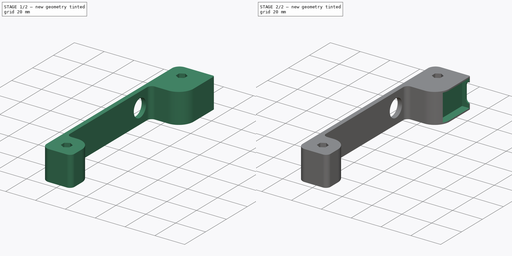
[diagram: build sequence overview — one tinted view per stage of 2, left to right]
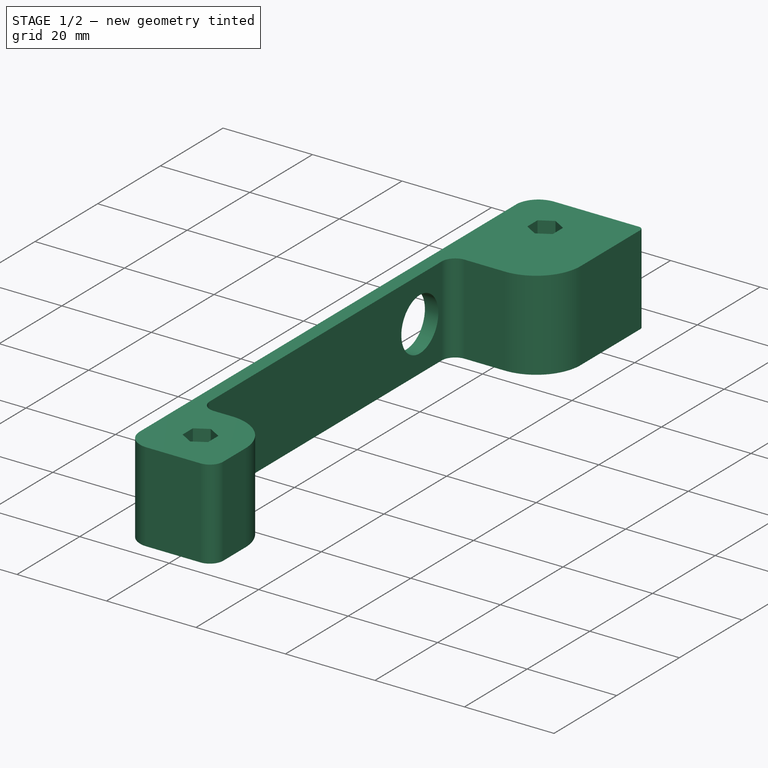
[diagram: stage 1 of 2 — iso view after this stage's code; geometry added in this stage tinted green]
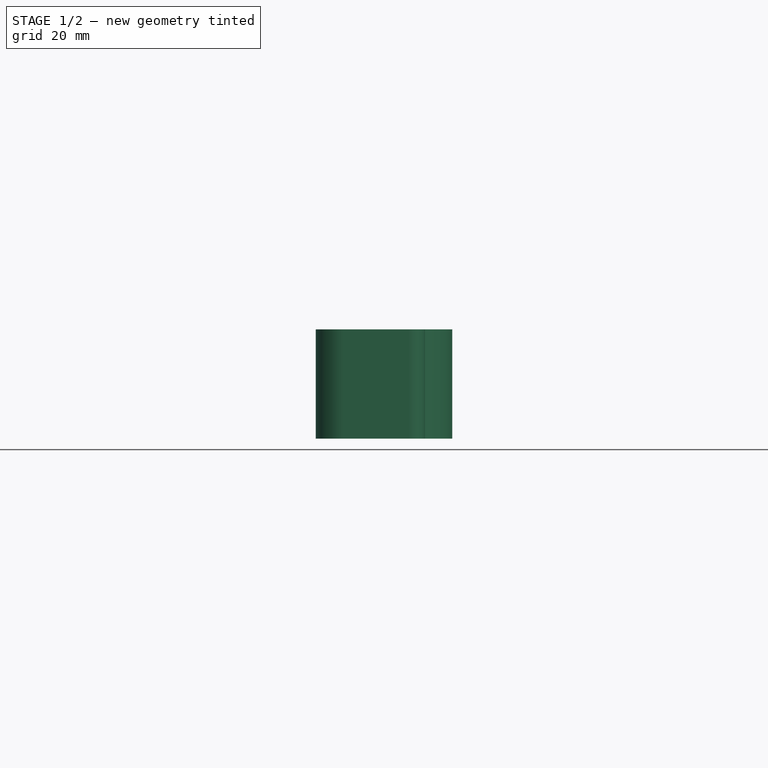
[diagram: stage 1 of 2 — front view after this stage's code; geometry added in this stage tinted green]
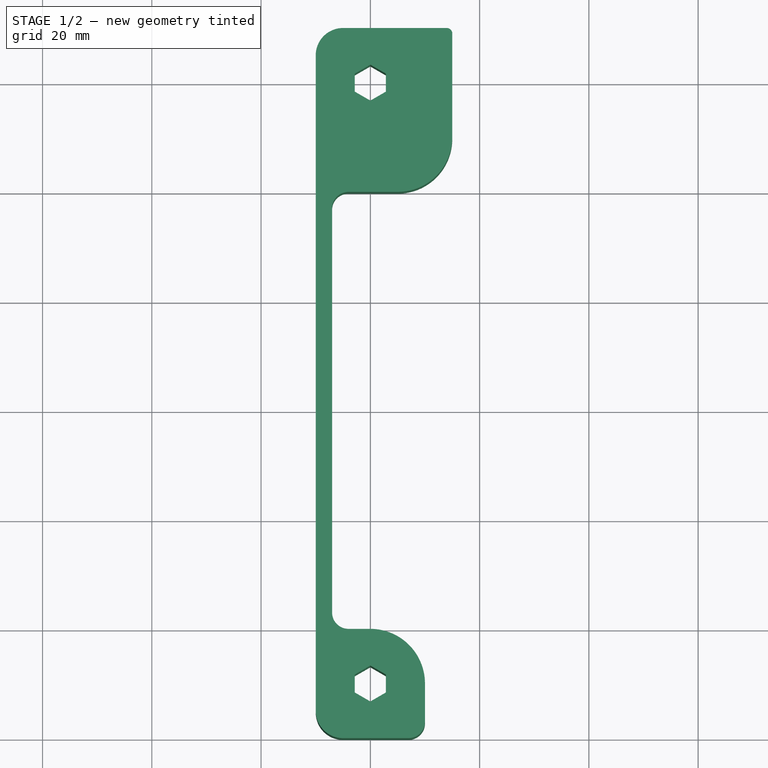
[diagram: stage 1 of 2 — top view after this stage's code; geometry added in this stage tinted green]
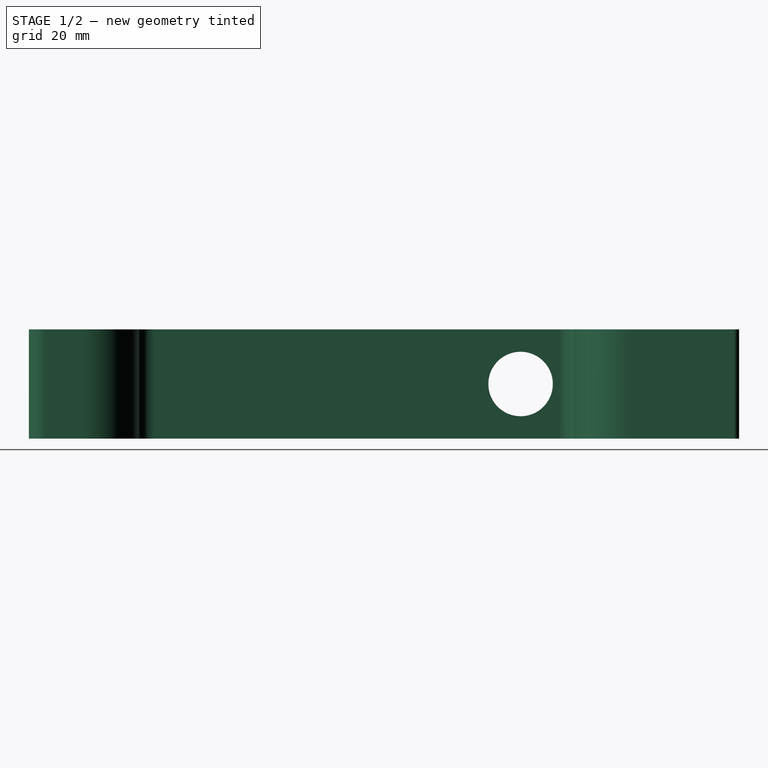
[diagram: stage 1 of 2 — right view after this stage's code; geometry added in this stage tinted green]
FCSTD DOCUMENT  (FreeCAD 1.0R39109 (Git))
Label: SidePanelFS
License: All rights reserved
LicenseURL: https://en.wikipedia.org/wiki/All_rights_reserved
objects: Sketcher::SketchObject×4, PartDesign::Plane×3, PartDesign::Pocket×3, PartDesign::Pad×1, Part::Compound×1, TechDraw::DrawSVGTemplate×1, TechDraw::DrawPage×1, PartDesign::Body×1
note: 25 computed .brp shape members not serialized (recipe doc carries the construction recipe); baked Part::Feature solids carry a one-line shape summary decoded from their .brp

FEATURE [Sketcher::SketchObject] Sketch
  ArcFitTolerance = 1e-06
  FullyConstrained = true
  MakeInternals = false
  sketch-geometry (37):
    g0: LineSegment StartX=-2.85 StartY=-1.64545 StartZ=0 EndX=0 EndY=-3.2909 EndZ=0
    g1: LineSegment StartX=0 StartY=-3.2909 StartZ=0 EndX=2.85 EndY=-1.64545 EndZ=0
    g2: LineSegment StartX=2.85 StartY=-1.64545 StartZ=0 EndX=2.85 EndY=1.64545 EndZ=0
    g3: LineSegment StartX=2.85 StartY=1.64545 StartZ=0 EndX=0 EndY=3.2909 EndZ=0
    g4: LineSegment StartX=0 StartY=3.2909 StartZ=0 EndX=-2.85 EndY=1.64545 EndZ=0
    g5: LineSegment StartX=-2.85 StartY=1.64545 StartZ=0 EndX=-2.85 EndY=-1.64545 EndZ=0
    g6: Circle [constr] CenterX=0 CenterY=0 CenterZ=0 NormalX=0 NormalY=0 NormalZ=1 AngleXU=0 Radius=3.2909
    g7: LineSegment StartX=-10 StartY=-115 StartZ=0 EndX=-10 EndY=5 EndZ=0
    g8: LineSegment StartX=-5 StartY=10 StartZ=0 EndX=14 EndY=10 EndZ=0
    g9: ArcOfCircle CenterX=-5 CenterY=5 CenterZ=0 NormalX=0 NormalY=0 NormalZ=1 AngleXU=0 Radius=5 StartAngle=1.5708 EndAngle=3.14159
    g10: GeomPoint [constr] X=-10 Y=10 Z=0
    g11: LineSegment StartX=-5 StartY=-120 StartZ=0 EndX=7 EndY=-120 EndZ=0
    g12: ArcOfCircle CenterX=-5 CenterY=-115 CenterZ=0 NormalX=0 NormalY=0 NormalZ=1 AngleXU=0 Radius=5 StartAngle=3.14159 EndAngle=4.71239
    g13: GeomPoint [constr] X=-10 Y=-120 Z=0
    g14: LineSegment StartX=-7 StartY=-23 StartZ=0 EndX=-7 EndY=-97 EndZ=0
    g15: LineSegment StartX=10 StartY=-117 StartZ=0 EndX=10 EndY=-110 EndZ=0
    g16: LineSegment StartX=3.3e-14 StartY=-100 StartZ=0 EndX=-4 EndY=-100 EndZ=0
    g17: ArcOfCircle CenterX=3.24e-14 CenterY=-110 CenterZ=0 NormalX=0 NormalY=0 NormalZ=1 AngleXU=0 Radius=10 StartAngle=0 EndAngle=1.5708
    g18: GeomPoint [constr] X=10 Y=-100 Z=0
    g19: ArcOfCircle CenterX=7 CenterY=-117 CenterZ=0 NormalX=0 NormalY=0 NormalZ=1 AngleXU=0 Radius=3 StartAngle=4.71239 EndAngle=6.28319
    g20: GeomPoint [constr] X=10 Y=-120 Z=0
    g21: ArcOfCircle CenterX=-4 CenterY=-97 CenterZ=0 NormalX=0 NormalY=0 NormalZ=1 AngleXU=0 Radius=3 StartAngle=3.14159 EndAngle=4.71239
    g22: GeomPoint [constr] X=-7 Y=-100 Z=0
    g23: LineSegment StartX=-4 StartY=-20 StartZ=0 EndX=5 EndY=-20 EndZ=0
    g24: LineSegment StartX=15 StartY=9 StartZ=0 EndX=15 EndY=-10 EndZ=0
    g25: ArcOfCircle CenterX=14 CenterY=9 CenterZ=0 NormalX=0 NormalY=0 NormalZ=1 AngleXU=0 Radius=1 StartAngle=0 EndAngle=1.5708
    g26: ArcOfCircle CenterX=5 CenterY=-10 CenterZ=0 NormalX=0 NormalY=0 NormalZ=1 AngleXU=0 Radius=10 StartAngle=4.71239 EndAngle=6.28319
    g27: GeomPoint [constr] X=15 Y=-20 Z=0
    g28: ArcOfCircle CenterX=-4 CenterY=-23 CenterZ=0 NormalX=0 NormalY=0 NormalZ=1 AngleXU=0 Radius=3 StartAngle=1.5708 EndAngle=3.14159
    g29: GeomPoint [constr] X=-7 Y=-20 Z=0
    g30: LineSegment StartX=2.85 StartY=-108.355 StartZ=0 EndX=3.24e-14 EndY=-106.709 EndZ=0
    g31: LineSegment StartX=3.24e-14 StartY=-106.709 StartZ=0 EndX=-2.85 EndY=-108.355 EndZ=0
    g32: LineSegment StartX=-2.85 StartY=-108.355 StartZ=0 EndX=-2.85 EndY=-111.645 EndZ=0
    g33: LineSegment StartX=-2.85 StartY=-111.645 StartZ=0 EndX=3.2e-14 EndY=-113.291 EndZ=0
    g34: LineSegment StartX=3.2e-14 StartY=-113.291 StartZ=0 EndX=2.85 EndY=-111.645 EndZ=0
    g35: LineSegment StartX=2.85 StartY=-111.645 StartZ=0 EndX=2.85 EndY=-108.355 EndZ=0
    g36: Circle [constr] CenterX=3.24e-14 CenterY=-110 CenterZ=0 NormalX=0 NormalY=0 NormalZ=1 AngleXU=0 Radius=3.2909
  constraints (86):
    c: Coincident(g0,g1)
    c: Coincident(g1,g2)
    c: Coincident(g2,g3)
    c: Coincident(g3,g4)
    c: Coincident(g4,g5)
    c: Coincident(g5,g0)
    c: Equal(g0, g1-g5) x5
    c: PointOnObject(g0,g6)
    c: PointOnObject(g1,g6)
    c: PointOnObject(g2,g6)
    c: PointOnObject(g3,g6)
    c: PointOnObject(g4,g6)
    c: PointOnObject(g5,g6)
    c: Coincident(g6,g-1)
    c: Distance(g2,g5) = 5.7
    c: Vertical(g3,g6)
    c: Vertical(g7)
    c: Horizontal(g8)
    c: Distance(g6,g7) = 10
    c: Distance(g6,g8) = 10
    c: PointOnObject(g10,g7)
    c: PointOnObject(g10,g8)
    c: Tangent(g7,g9) = 1.5708
    c: Tangent(g8,g9) = 1.5708
    c: DistanceX(g7,g9) = 5
    c: Horizontal(g11)
    c: Distance(g8,g11) = 130
    c: PointOnObject(g13,g7)
    c: PointOnObject(g13,g11)
    c: Tangent(g7,g12) = 1.5708
    c: Tangent(g11,g12) = -1.5708
    c: Equal(g12,g9)
    c: Vertical(g14)
    c: Distance(g29,g8) = 30
    c: Distance(g7,g14) = 3
    c: Distance(g22,g11) = 20
    c: Horizontal(g16)
    c: PointOnObject(g18,g15)
    c: PointOnObject(g18,g16)
    c: Tangent(g15,g17) = -1.5708
    c: Tangent(g16,g17) = -1.5708
    c: PointOnObject(g20,g11)
    c: PointOnObject(g20,g15)
    c: Tangent(g11,g19) = -1.5708
    c: Tangent(g15,g19) = -1.5708
    c: Radius(g17) = 10
    c: Radius(g19) = 3
    c: PointOnObject(g22,g14)
    c: PointOnObject(g22,g16)
    c: Tangent(g14,g21) = -1.5708
    c: Tangent(g16,g21) = 1.5708
    c: Equal(g21,g19)
    c: Horizontal(g23)
    c: Vertical(g24)
    c: Tangent(g8,g25) = 1.5708
    c: Tangent(g24,g25) = 1.5708
    c: PointOnObject(g27,g23)
    c: PointOnObject(g27,g24)
    c: Tangent(g23,g26) = -1.5708
    c: Tangent(g24,g26) = 1.5708
    c: PointOnObject(g29,g14)
    c: PointOnObject(g29,g23)
    c: Tangent(g14,g28) = -1.5708
    c: Tangent(g23,g28) = 1.5708
    c: Equal(g17,g26)
    c: Coincident(g30,g31)
    c: Coincident(g31,g32)
    c: Coincident(g32,g33)
    c: Coincident(g33,g34)
    c: Coincident(g34,g35)
    c: Coincident(g35,g30)
    c: Equal(g30, g31-g35) x5
    c: PointOnObject(g30,g36)
    c: PointOnObject(g31,g36)
    c: PointOnObject(g32,g36)
    c: PointOnObject(g34,g36)
    c: PointOnObject(g35,g36)
    c: Coincident(g36,g17)
    c: Vertical(g30,g17)
    c: Distance(g35,g32) = 5.7
    c: Vertical(g15)
    c: Distance(g7,g15) = 20
    c: Radius(g25) = 1
    c: Distance(g7,g24) = 25
    c: Equal(g28,g19)
    c: PointOnObject(g33,g36)
FEATURE [PartDesign::Pad] Pad
  Direction = (0,0,1)
  Length = 20
  Length2 = 10
  Profile = -> Sketch
  ReferenceAxis = -> Sketch [N_Axis]
  Refine = true
  Suppressed = false
  Type = 0
FEATURE [PartDesign::Plane] DatumPlane
  AttachmentSupport = -> [Pad]
  Length = 60
  MapMode = 5
  Placement = pos=(-10,0,0) rot=(0.57735,-0.57735,-0.57735;2.0944rad)
  ResizeMode = 0
  Width = 60
FEATURE [Sketcher::SketchObject] Sketch001
  ArcFitTolerance = 1e-06
  AttachmentSupport = -> [DatumPlane]
  ExternalGeometry = -> [Pad]
  FullyConstrained = true
  MakeInternals = false
  MapMode = 5
  Placement = pos=(-10,0,0) rot=(0.57735,-0.57735,-0.57735;2.0944rad)
  sketch-geometry (1):
    g0: Circle CenterX=30 CenterY=10 CenterZ=0 NormalX=0 NormalY=0 NormalZ=1 AngleXU=0 Radius=5.9
  constraints (3):
    c: Distance(g0,g-3) = 40
    c: Diameter(g0) = 11.8
    c: DistanceY(g0,g-3) = 10
FEATURE [PartDesign::Pocket] Pocket
  BaseFeature = -> Pad
  Direction = (1,0,0)
  Length = 3
  Length2 = 5
  Profile = -> Sketch001
  ReferenceAxis = -> Sketch001 [N_Axis]
  Refine = true
  Suppressed = false
  Type = 0
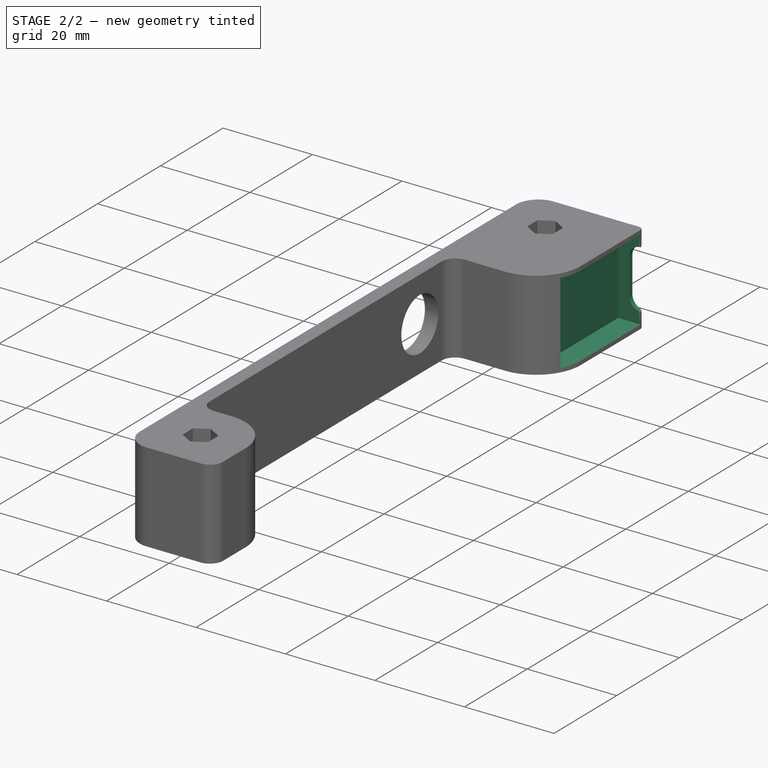
[diagram: stage 2 of 2 — iso view after this stage's code; geometry added in this stage tinted green]
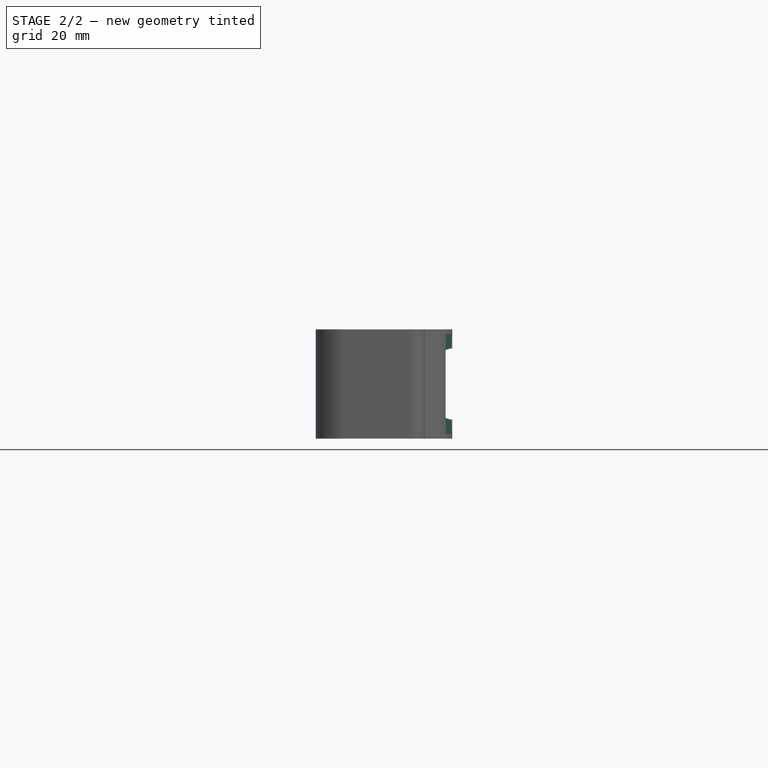
[diagram: stage 2 of 2 — front view after this stage's code; geometry added in this stage tinted green]
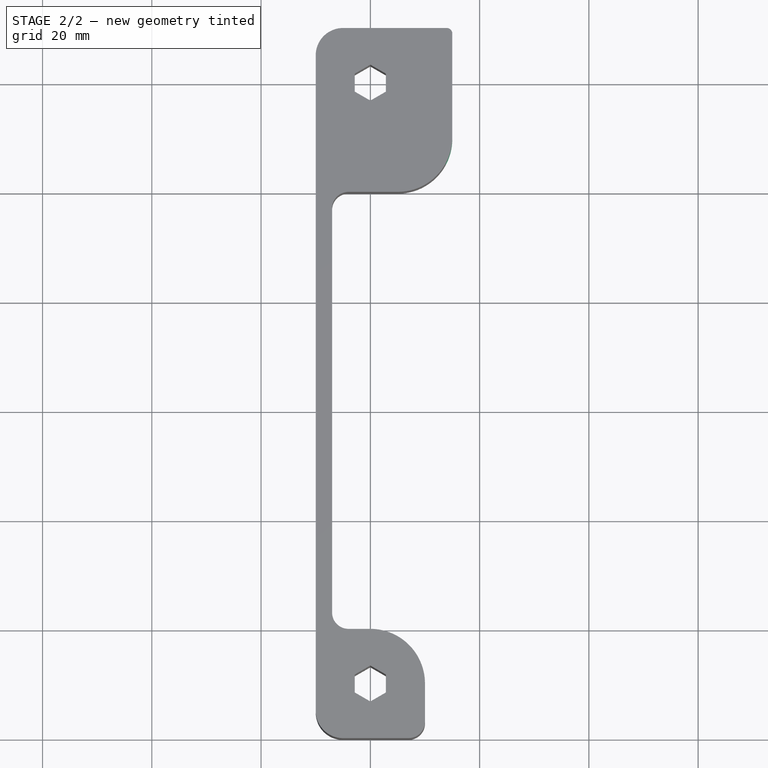
[diagram: stage 2 of 2 — top view after this stage's code; geometry added in this stage tinted green]
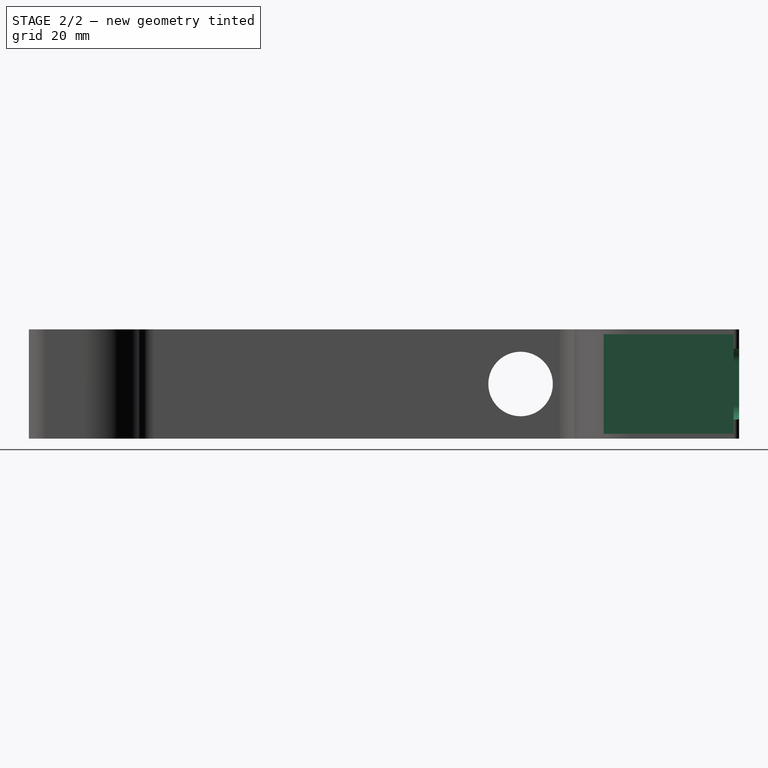
[diagram: stage 2 of 2 — right view after this stage's code; geometry added in this stage tinted green]
FEATURE [PartDesign::Plane] DatumPlane001
  AttachmentSupport = -> [Pocket]
  Length = 60
  MapMode = 5
  Placement = pos=(15,0,0) rot=(0.57735,0.57735,0.57735;2.0944rad)
  ResizeMode = 0
  Width = 60
FEATURE [Sketcher::SketchObject] Sketch002
  ArcFitTolerance = 1e-06
  AttachmentSupport = -> [DatumPlane001]
  ExternalGeometry = -> [Pocket]
  FullyConstrained = true
  MakeInternals = false
  MapMode = 5
  Placement = pos=(15,0,0) rot=(0.57735,0.57735,0.57735;2.0944rad)
  sketch-geometry (4):
    g0: LineSegment StartX=-14.8 StartY=0.9 StartZ=0 EndX=9 EndY=0.9 EndZ=0
    g1: LineSegment StartX=9 StartY=0.9 StartZ=0 EndX=9 EndY=19.1 EndZ=0
    g2: LineSegment StartX=9 StartY=19.1 StartZ=0 EndX=-14.8 EndY=19.1 EndZ=0
    g3: LineSegment StartX=-14.8 StartY=19.1 StartZ=0 EndX=-14.8 EndY=0.9 EndZ=0
  constraints (12):
    c: Coincident(g0,g1)
    c: Coincident(g1,g2)
    c: Coincident(g2,g3)
    c: Coincident(g3,g0)
    c: Horizontal(g0)
    c: Horizontal(g2)
    c: Vertical(g1)
    c: Vertical(g3)
    c: DistanceY(g3,g3) = 18.2
    c: Distance(g-1,g0) = 0.9
    c: DistanceX(g0,g0) = 23.8
    c: Distance(g-3,g1) = 1
FEATURE [PartDesign::Pocket] Pocket001
  BaseFeature = -> Pocket
  Direction = (-1,0,0)
  Length = 5
  Length2 = 5
  Profile = -> Sketch002
  ReferenceAxis = -> Sketch002 [N_Axis]
  Refine = true
  Suppressed = false
  Type = 0
FEATURE [Part::Compound] Compound
  Links = -> [Sketch]
FEATURE [TechDraw::DrawSVGTemplate] Template
  Height = 297
  Orientation = 0
  Template = C:/Program Files/FreeCAD 1.0/data/Mod/TechDraw/Templates/A4_Portrait_blank.svg
  Width = 210
FEATURE [TechDraw::DrawPage] Page
  KeepUpdated = true
  NextBalloonIndex = 1
  ProjectionType = 0
  Template = -> Template
FEATURE [PartDesign::Plane] DatumPlane002
  AttachmentSupport = -> [Pocket001]
  Length = 60
  MapMode = 5
  Placement = pos=(0,10,0) rot=(0,0.707107,0.707107;3.14159rad)
  ResizeMode = 0
  Width = 60
FEATURE [Sketcher::SketchObject] Sketch003
  ArcFitTolerance = 1e-06
  AttachmentSupport = -> [DatumPlane002]
  ExternalGeometry = -> [Pocket001]
  FullyConstrained = true
  MakeInternals = false
  MapMode = 5
  Placement = pos=(0,10,0) rot=(0,0.707107,0.707107;3.14159rad)
  sketch-geometry (4):
    g0: LineSegment StartX=-12.5 StartY=14 StartZ=0 EndX=-12.5 EndY=6 EndZ=0
    g1: ArcOfCircle CenterX=-15 CenterY=6 CenterZ=0 NormalX=0 NormalY=0 NormalZ=1 AngleXU=0 Radius=2.5 StartAngle=4.71239 EndAngle=6.28319
    g2: ArcOfCircle CenterX=-15 CenterY=14 CenterZ=0 NormalX=0 NormalY=0 NormalZ=1 AngleXU=0 Radius=2.5 StartAngle=0 EndAngle=1.5708
    g3: LineSegment StartX=-15 StartY=16.5 StartZ=0 EndX=-15 EndY=3.5 EndZ=0
  constraints (12):
    c: Vertical(g0)
    c: Distance(g-3,g0) = 2.5
    c: DistanceY(g0,g0) = 8
    c: PointOnObject(g1,g-3)
    c: PointOnObject(g2,g-3)
    c: Tangent(g2,g0) = 1.5708
    c: Tangent(g1,g0) = 1.5708
    c: PointOnObject(g1,g-3)
    c: Distance(g0,g-1) = 6
    c: Equal(g1,g2)
    c: Coincident(g3,g2)
    c: Coincident(g3,g1)
FEATURE [PartDesign::Pocket] Pocket002
  BaseFeature = -> Pocket001
  Direction = (0,-1,2e-16)
  Length = 5
  Length2 = 5
  Profile = -> Sketch003
  ReferenceAxis = -> Sketch003 [N_Axis]
  Refine = true
  Suppressed = false
  Type = 0
FEATURE [PartDesign::Body] Body
  AllowCompound = false
  Group = -> [Sketch,Pad,DatumPlane,Sketch001,Pocket,DatumPlane001,Sketch002,Pocket001,DatumPlane002,Sketch003,Pocket002]
  Origin = -> Origin
  Tip = -> Pocket002
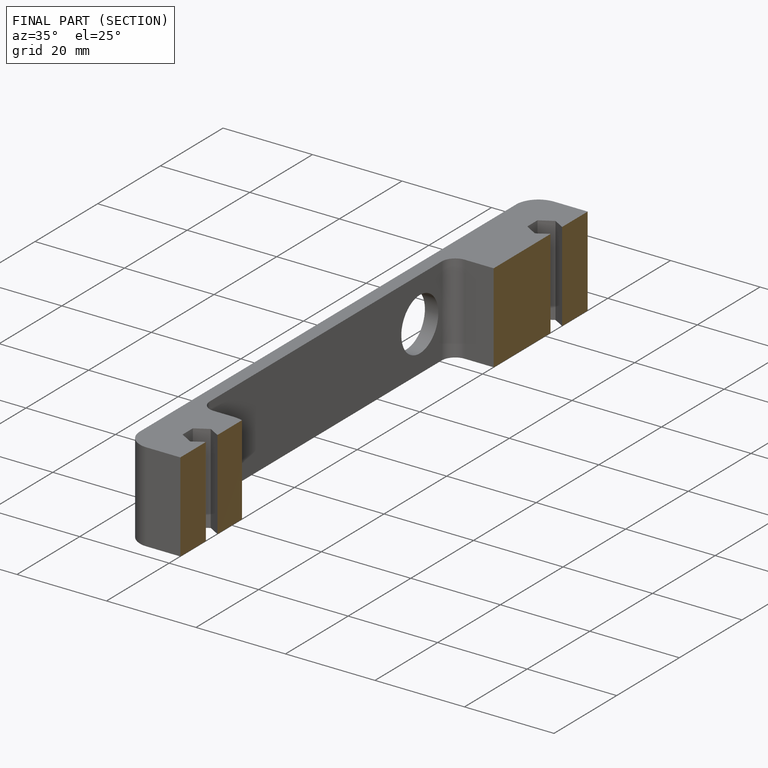
[diagram: finished part — half-section view (interior)]
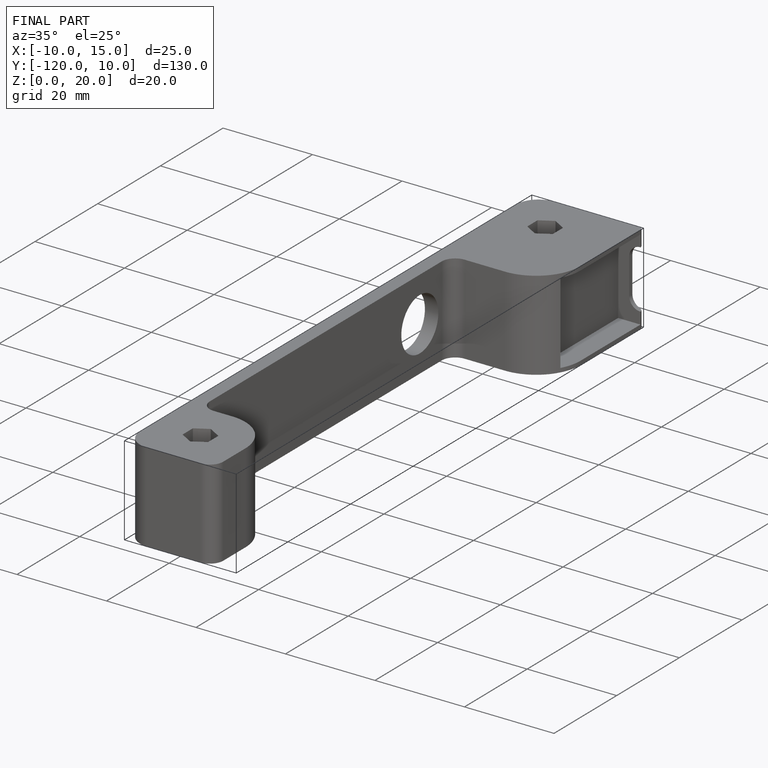
[diagram: finished part — iso view with bounding-box wireframe]
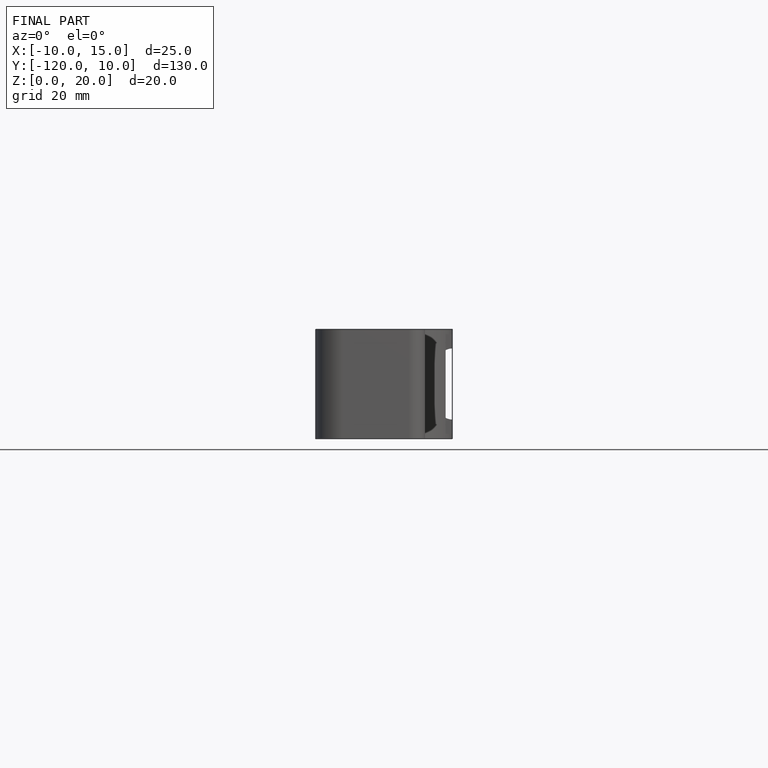
[diagram: finished part — front view with bounding-box wireframe]
